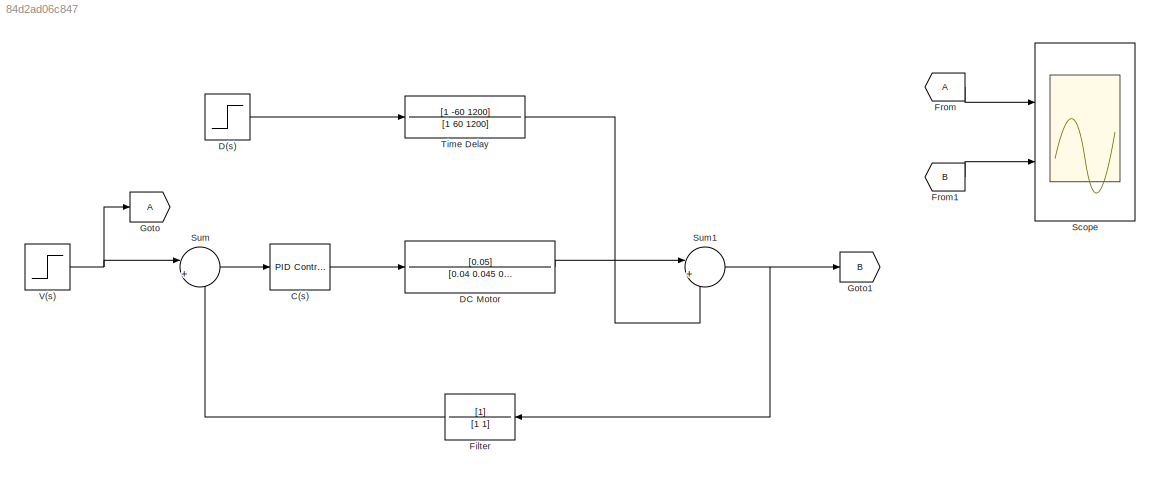
MODEL slx_84d2ad06c847
KIND model
CONFIG AbsTol = auto
CONFIG EnableMultiTasking = off
CONFIG FixedStep = auto
CONFIG MaxStep = auto
CONFIG MinStep = auto
CONFIG RelTol = 1e-3
CONFIG SampleTimeConstraint = Unconstrained
CONFIG SolverName = VariableStepAuto
CONFIG StartTime = 0.0
CONFIG StopTime = 1
BLOCK [Reference] C(s)  REF=pid_lib/PID Controller
  Ports = [1, 1]
  SourceBlock = pid_lib/PID Controller
  SourceProductBaseCode = SL
  SourceType = PID 1dof
BLOCK [Step] D(s)
  After = 0.5
  SampleTime = 0
  Time = 0
BLOCK [TransferFcn] DC Motor
  Denominator = [0.04 0.045 0.0525]
  Numerator = [0.05]
BLOCK [TransferFcn] Filter
  Denominator = [1 1]
BLOCK [From] From
BLOCK [From] From1
  GotoTag = B
BLOCK [Goto] Goto
BLOCK [Goto] Goto1
  GotoTag = B
BLOCK [Scope] Scope
  Floating = off
  NumInputPorts = 2
  Ports = [2]
  ScopeSpecificationString = Simulink.scopes.TimeScopeBlockCfg('CurrentConfiguration', extmgr.ConfigurationSet(extmgr.Configuration('Core','General UI',true,'FigureColor',[1 1 1]),extmgr.Configuration('Core','Source UI',true),extmgr.Configuration('Sources','WiredSimulink',true),extmgr.Configuration('Visuals','Time Domain',true,'SerializedDisplays',{struct('MinYLimReal','0.9','MaxYLimReal','1.1','YLabelReal','V(s)','MinYLimMag...<+2198ch>
BLOCK [Sum] Sum
  Inputs = |+-
  Ports = [2, 1]
BLOCK [Sum] Sum1
  Inputs = |++
  Ports = [2, 1]
BLOCK [TransferFcn] Time Delay
  Denominator = [1 60 1200]
  Numerator = [1 -60 1200]
BLOCK [Step] V(s)
  SampleTime = 0
  Time = 0
LINE C(s):1 -> DC Motor:1
LINE D(s):1 -> Time Delay:1
LINE DC Motor:1 -> Sum1:1
LINE Filter:1 -> Sum:2
LINE From1:1 -> Scope:2
LINE From:1 -> Scope:1
NET Sum1:1 -> Filter:1, Goto1:1
LINE Sum:1 -> C(s):1
LINE Time Delay:1 -> Sum1:2
NET V(s):1 -> Goto:1, Sum:1
note: NET lines group one-source signal fan-out (src -> all destinations, sorted); 1:1 wires keep LINE
